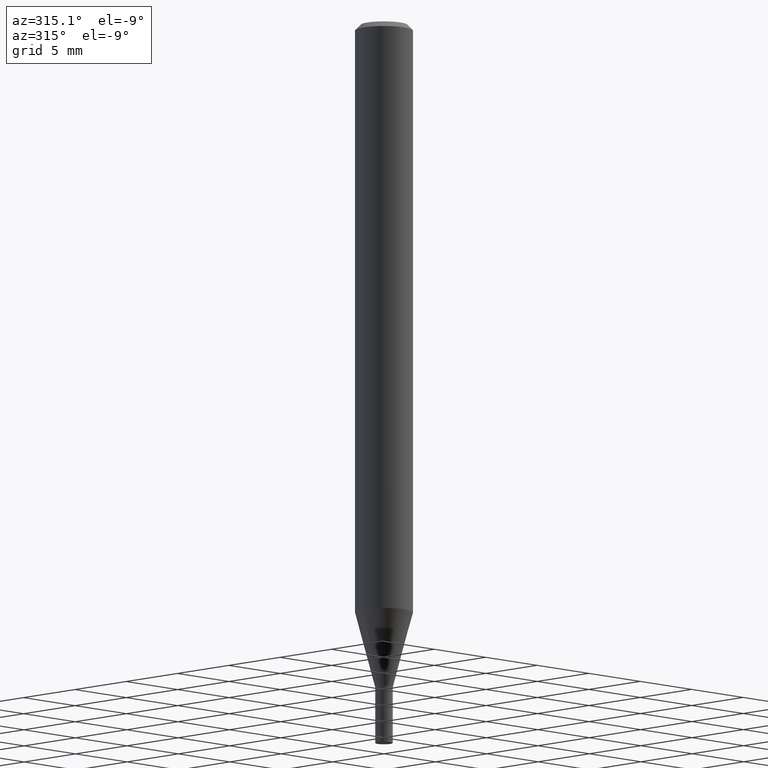
[diagram: clean part render]
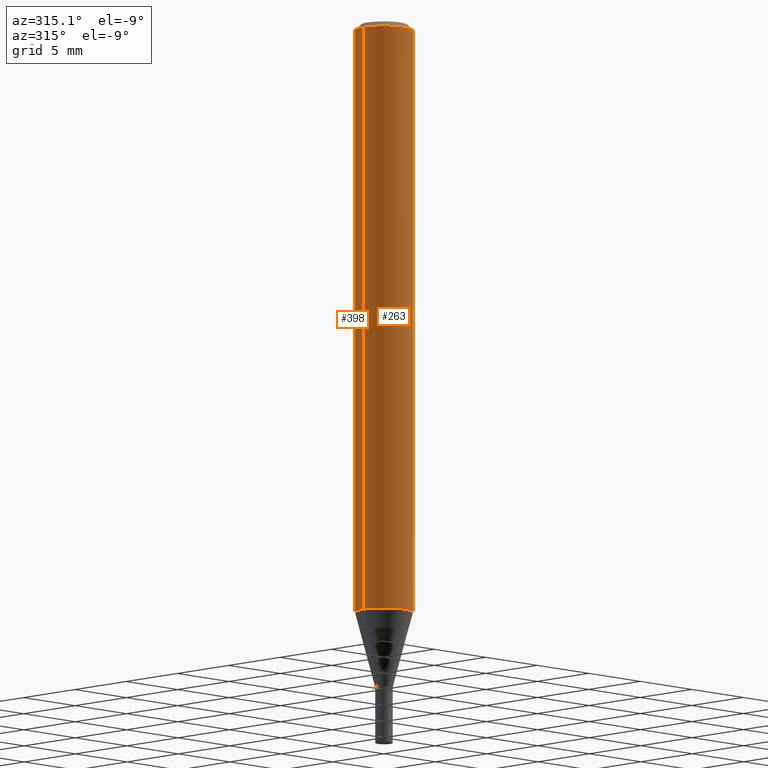
[diagram: same view with one multi-face feature highlighted, each face labeled with its STEP entity id]
A machine part, auxiliary view. The highlighted faces form ONE feature: a constant-radius fillet chain: 2 tangent blend faces with common blend radius 2.0002 mm. The faces share edges in the B-rep.
Their STEP definitions:
[1] entity #398 (Cylinder):
#8 = AXIS2_PLACEMENT_3D ( 'NONE', #54, #255, #25 ) ;
#13 = EDGE_CURVE ( 'NONE', #268, #266, #401, .T. ) ;
#20 = VERTEX_POINT ( 'NONE', #251 ) ;
#25 = DIRECTION ( 'NONE',  ( 1.000000000000000000, -6.982962677686265922E-15, 0.000000000000000000 ) ) ;
#42 = CARTESIAN_POINT ( 'NONE',  ( 0.07875000000000001443, -6.173558388750569332E-15, -1.610677397962577695 ) ) ;
#48 = DIRECTION ( 'NONE',  ( -2.445468806185136597E-29, 3.491481338843145583E-15, 1.000000000000000000 ) ) ;
#52 = DIRECTION ( 'NONE',  ( -2.445468806185136877E-29, 3.491481338843145188E-15, 1.000000000000000000 ) ) ;
#54 = CARTESIAN_POINT ( 'NONE',  ( 3.668203209277705088E-31, -5.237222008264718399E-17, -0.01499999999999999944 ) ) ;
#77 = ORIENTED_EDGE ( 'NONE', *, *, #304, .T. ) ;
#97 = CARTESIAN_POINT ( 'NONE',  ( -0.07875000000000000056, 5.595524044110789003E-16, -3.873661383575737792E-30 ) ) ;
#99 = DIRECTION ( 'NONE',  ( 1.000000000000000000, -6.982962677686261977E-15, 0.000000000000000000 ) ) ;
#104 = CARTESIAN_POINT ( 'NONE',  ( 0.07875000000000000056, -5.499083108677934443E-16, 3.839989210939299016E-30 ) ) ;
#108 = LINE ( 'NONE', #104, #202 ) ;
#110 = DIRECTION ( 'NONE',  ( -2.445468806185136597E-29, 3.491481338843145583E-15, 1.000000000000000000 ) ) ;
#112 = EDGE_CURVE ( 'NONE', #268, #185, #108, .T. ) ;
#129 = CARTESIAN_POINT ( 'NONE',  ( 3.938861333544927198E-29, -5.623650077882775197E-15, -1.610677397962577695 ) ) ;
#131 = LINE ( 'NONE', #97, #247 ) ;
#160 = CIRCLE ( 'NONE', #8, 0.07875000000000000056 ) ;
#185 = VERTEX_POINT ( 'NONE', #418 ) ;
#192 = ORIENTED_EDGE ( 'NONE', *, *, #13, .T. ) ;
#202 = VECTOR ( 'NONE', #462, 39.37007874015748143 ) ;
#228 = ORIENTED_EDGE ( 'NONE', *, *, #233, .F. ) ;
#230 = CARTESIAN_POINT ( 'NONE',  ( 0.000000000000000000, 0.000000000000000000, 0.000000000000000000 ) ) ;
#233 = EDGE_CURVE ( 'NONE', #185, #20, #160, .T. ) ;
#247 = VECTOR ( 'NONE', #52, 39.37007874015748143 ) ;
#251 = CARTESIAN_POINT ( 'NONE',  ( -0.07875000000000000056, -2.278458744571632534E-15, -0.01499999999999999944 ) ) ;
#254 = AXIS2_PLACEMENT_3D ( 'NONE', #230, #110, #294 ) ;
#255 = DIRECTION ( 'NONE',  ( -2.445468806185136597E-29, 3.491481338843145583E-15, 1.000000000000000000 ) ) ;
#266 = VERTEX_POINT ( 'NONE', #324 ) ;
#268 = VERTEX_POINT ( 'NONE', #42 ) ;
#271 = ORIENTED_EDGE ( 'NONE', *, *, #112, .F. ) ;
#294 = DIRECTION ( 'NONE',  ( 1.000000000000000000, -6.982962677686265922E-15, 4.876176775795935232E-29 ) ) ;
#304 = EDGE_CURVE ( 'NONE', #266, #20, #131, .T. ) ;
#324 = CARTESIAN_POINT ( 'NONE',  ( -0.07875000000000001443, -5.064097673471695607E-15, -1.610677397962577695 ) ) ;
#368 = CYLINDRICAL_SURFACE ( 'NONE', #254, 0.07875000000000000056 ) ;
#377 = EDGE_LOOP ( 'NONE', ( #192, #77, #228, #271 ) ) ;
#398 = ADVANCED_FACE ( 'NONE', ( #428 ), #368, .T. ) ;
#401 = CIRCLE ( 'NONE', #409, 0.07875000000000000056 ) ;
#409 = AXIS2_PLACEMENT_3D ( 'NONE', #129, #48, #99 ) ;
#418 = CARTESIAN_POINT ( 'NONE',  ( 0.07875000000000000056, -6.022805309504406221E-16, -0.01499999999999999944 ) ) ;
#428 = FACE_OUTER_BOUND ( 'NONE', #377, .T. ) ;
#462 = DIRECTION ( 'NONE',  ( -2.445468806185136877E-29, 3.491481338843145188E-15, 1.000000000000000000 ) ) ;
[2] entity #263 (Cylinder):
#5 = CARTESIAN_POINT ( 'NONE',  ( 3.938861333544927198E-29, -5.623650077882775197E-15, -1.610677397962577695 ) ) ;
#18 = DIRECTION ( 'NONE',  ( -2.445468806185136597E-29, 3.491481338843145583E-15, 1.000000000000000000 ) ) ;
#20 = VERTEX_POINT ( 'NONE', #251 ) ;
#21 = FACE_OUTER_BOUND ( 'NONE', #272, .T. ) ;
#42 = CARTESIAN_POINT ( 'NONE',  ( 0.07875000000000001443, -6.173558388750569332E-15, -1.610677397962577695 ) ) ;
#52 = DIRECTION ( 'NONE',  ( -2.445468806185136877E-29, 3.491481338843145188E-15, 1.000000000000000000 ) ) ;
#53 = CIRCLE ( 'NONE', #103, 0.07875000000000000056 ) ;
#97 = CARTESIAN_POINT ( 'NONE',  ( -0.07875000000000000056, 5.595524044110789003E-16, -3.873661383575737792E-30 ) ) ;
#103 = AXIS2_PLACEMENT_3D ( 'NONE', #137, #145, #170 ) ;
#104 = CARTESIAN_POINT ( 'NONE',  ( 0.07875000000000000056, -5.499083108677934443E-16, 3.839989210939299016E-30 ) ) ;
#108 = LINE ( 'NONE', #104, #202 ) ;
#112 = EDGE_CURVE ( 'NONE', #268, #185, #108, .T. ) ;
#127 = DIRECTION ( 'NONE',  ( 1.000000000000000000, -6.982962677686261977E-15, 0.000000000000000000 ) ) ;
#131 = LINE ( 'NONE', #97, #247 ) ;
#136 = AXIS2_PLACEMENT_3D ( 'NONE', #284, #18, #176 ) ;
#137 = CARTESIAN_POINT ( 'NONE',  ( 3.668203209277705088E-31, -5.237222008264718399E-17, -0.01499999999999999944 ) ) ;
#145 = DIRECTION ( 'NONE',  ( -2.445468806185136597E-29, 3.491481338843145583E-15, 1.000000000000000000 ) ) ;
#154 = DIRECTION ( 'NONE',  ( -2.445468806185136597E-29, 3.491481338843145583E-15, 1.000000000000000000 ) ) ;
#170 = DIRECTION ( 'NONE',  ( 1.000000000000000000, -6.982962677686265922E-15, 0.000000000000000000 ) ) ;
#176 = DIRECTION ( 'NONE',  ( 1.000000000000000000, -6.982962677686265922E-15, 4.876176775795935232E-29 ) ) ;
#185 = VERTEX_POINT ( 'NONE', #418 ) ;
#202 = VECTOR ( 'NONE', #462, 39.37007874015748143 ) ;
#209 = CYLINDRICAL_SURFACE ( 'NONE', #136, 0.07875000000000000056 ) ;
#222 = CIRCLE ( 'NONE', #347, 0.07875000000000000056 ) ;
#241 = EDGE_CURVE ( 'NONE', #20, #185, #53, .T. ) ;
#247 = VECTOR ( 'NONE', #52, 39.37007874015748143 ) ;
#251 = CARTESIAN_POINT ( 'NONE',  ( -0.07875000000000000056, -2.278458744571632534E-15, -0.01499999999999999944 ) ) ;
#263 = ADVANCED_FACE ( 'NONE', ( #21 ), #209, .T. ) ;
#266 = VERTEX_POINT ( 'NONE', #324 ) ;
#268 = VERTEX_POINT ( 'NONE', #42 ) ;
#272 = EDGE_LOOP ( 'NONE', ( #321, #379, #353, #280 ) ) ;
#280 = ORIENTED_EDGE ( 'NONE', *, *, #241, .F. ) ;
#284 = CARTESIAN_POINT ( 'NONE',  ( 0.000000000000000000, 0.000000000000000000, 0.000000000000000000 ) ) ;
#289 = EDGE_CURVE ( 'NONE', #266, #268, #222, .T. ) ;
#304 = EDGE_CURVE ( 'NONE', #266, #20, #131, .T. ) ;
#321 = ORIENTED_EDGE ( 'NONE', *, *, #304, .F. ) ;
#324 = CARTESIAN_POINT ( 'NONE',  ( -0.07875000000000001443, -5.064097673471695607E-15, -1.610677397962577695 ) ) ;
#347 = AXIS2_PLACEMENT_3D ( 'NONE', #5, #154, #127 ) ;
#353 = ORIENTED_EDGE ( 'NONE', *, *, #112, .T. ) ;
#379 = ORIENTED_EDGE ( 'NONE', *, *, #289, .T. ) ;
#418 = CARTESIAN_POINT ( 'NONE',  ( 0.07875000000000000056, -6.022805309504406221E-16, -0.01499999999999999944 ) ) ;
#462 = DIRECTION ( 'NONE',  ( -2.445468806185136877E-29, 3.491481338843145188E-15, 1.000000000000000000 ) ) ;